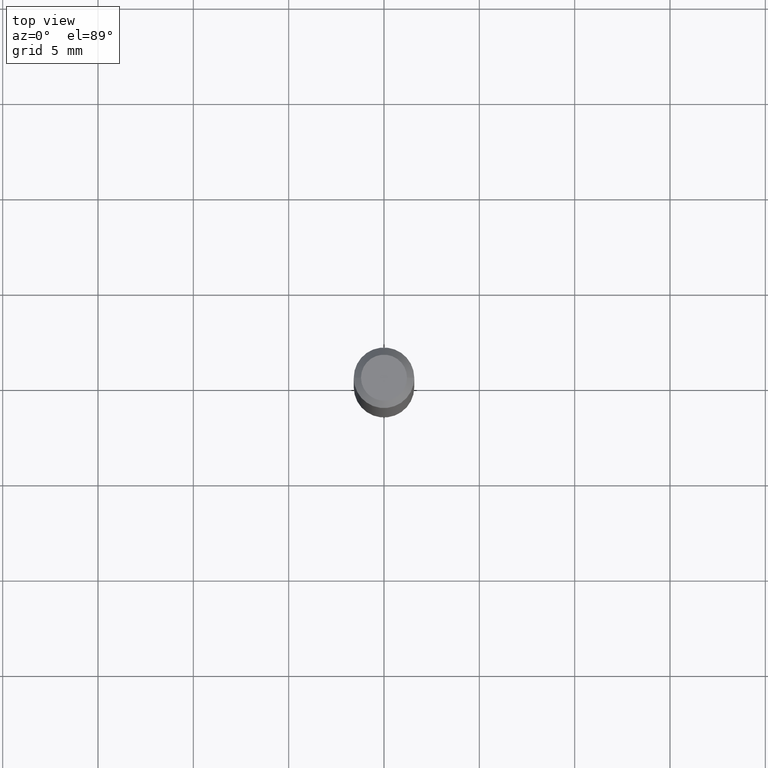
[diagram: clean part render]
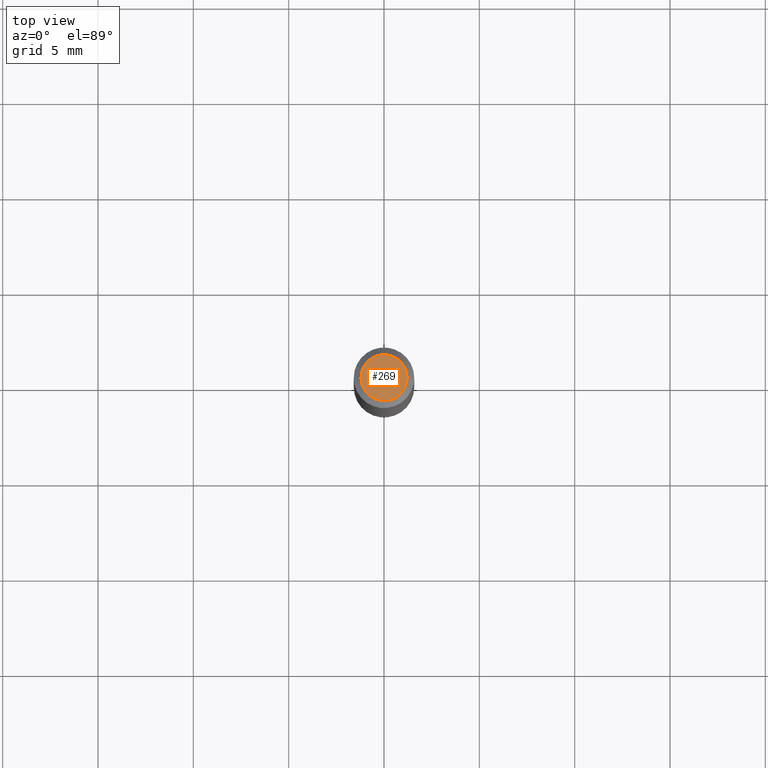
[diagram: same view with one face highlighted and labeled with its STEP entity id]
A machine part, top view. The second image highlights one B-rep face of the part: STEP entity #269.
In plain terms, the highlighted planar face has unit normal (0, -0, -1).
Its self-contained STEP definition (entity closure, byte-faithful):
#71 = CARTESIAN_POINT ( 'NONE',  ( -6.680649051745406845E-45, 9.538196290434862081E-31, 2.731847993664263218E-16 ) ) ;
#74 = DIRECTION ( 'NONE',  ( -2.445468806185136597E-29, 3.491481338843145583E-15, 1.000000000000000000 ) ) ;
#124 = AXIS2_PLACEMENT_3D ( 'NONE', #351, #274, #517 ) ;
#127 = CARTESIAN_POINT ( 'NONE',  ( 0.04750000000000000749, -4.035134999187568762E-16, 2.731847993664288856E-16 ) ) ;
#145 = AXIS2_PLACEMENT_3D ( 'NONE', #190, #390, #463 ) ;
#162 = ORIENTED_EDGE ( 'NONE', *, *, #438, .T. ) ;
#171 = VERTEX_POINT ( 'NONE', #127 ) ;
#190 = CARTESIAN_POINT ( 'NONE',  ( 3.316907271900976589E-16, 0.04750000000000000749, -2.925296391183627249E-17 ) ) ;
#198 = CARTESIAN_POINT ( 'NONE',  ( -0.04750000000000000749, 3.578768372314221353E-16, 2.731847993664239060E-16 ) ) ;
#247 = AXIS2_PLACEMENT_3D ( 'NONE', #71, #74, #383 ) ;
#269 = ADVANCED_FACE ( 'NONE', ( #336 ), #344, .F. ) ;
#274 = DIRECTION ( 'NONE',  ( -2.445468806185136597E-29, 3.491481338843145583E-15, 1.000000000000000000 ) ) ;
#308 = EDGE_CURVE ( 'NONE', #420, #171, #503, .T. ) ;
#310 = ORIENTED_EDGE ( 'NONE', *, *, #308, .T. ) ;
#336 = FACE_OUTER_BOUND ( 'NONE', #359, .T. ) ;
#344 = PLANE ( 'NONE',  #145 ) ;
#351 = CARTESIAN_POINT ( 'NONE',  ( -6.680649051745406845E-45, 9.538196290434862081E-31, 2.731847993664263218E-16 ) ) ;
#359 = EDGE_LOOP ( 'NONE', ( #310, #162 ) ) ;
#383 = DIRECTION ( 'NONE',  ( 1.000000000000000000, -6.982962677686266711E-15, 4.852736867747365086E-29 ) ) ;
#390 = DIRECTION ( 'NONE',  ( 2.438088387897960049E-29, -3.491481338843145188E-15, -1.000000000000000000 ) ) ;
#420 = VERTEX_POINT ( 'NONE', #198 ) ;
#438 = EDGE_CURVE ( 'NONE', #171, #420, #469, .T. ) ;
#463 = DIRECTION ( 'NONE',  ( -1.000000000000000000, 6.982962677686265922E-15, -4.876176775795935793E-29 ) ) ;
#469 = CIRCLE ( 'NONE', #124, 0.04750000000000000749 ) ;
#503 = CIRCLE ( 'NONE', #247, 0.04750000000000000749 ) ;
#517 = DIRECTION ( 'NONE',  ( 1.000000000000000000, -6.982962677686266711E-15, 4.852736867747365086E-29 ) ) ;